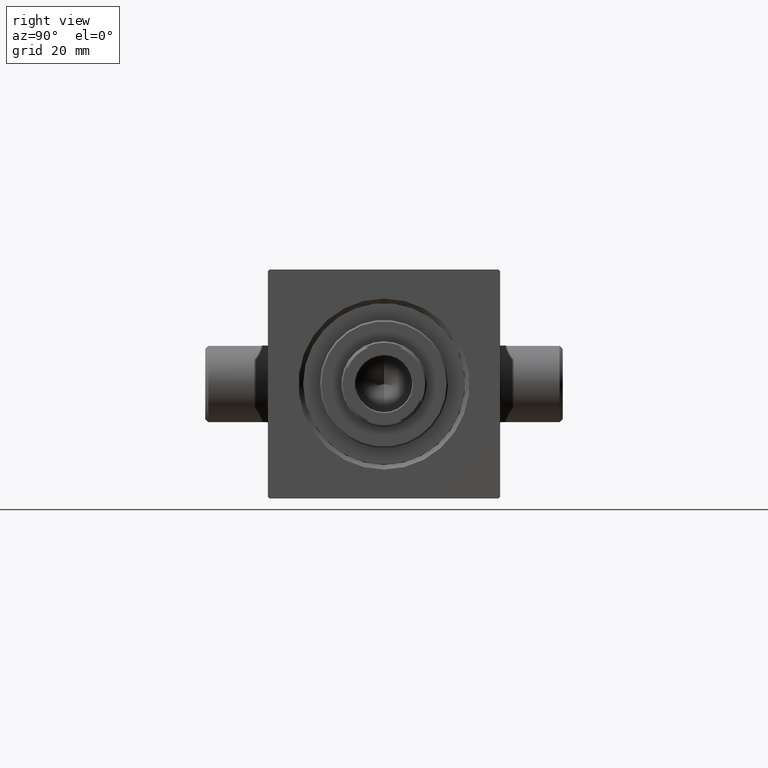
[diagram: clean part render]
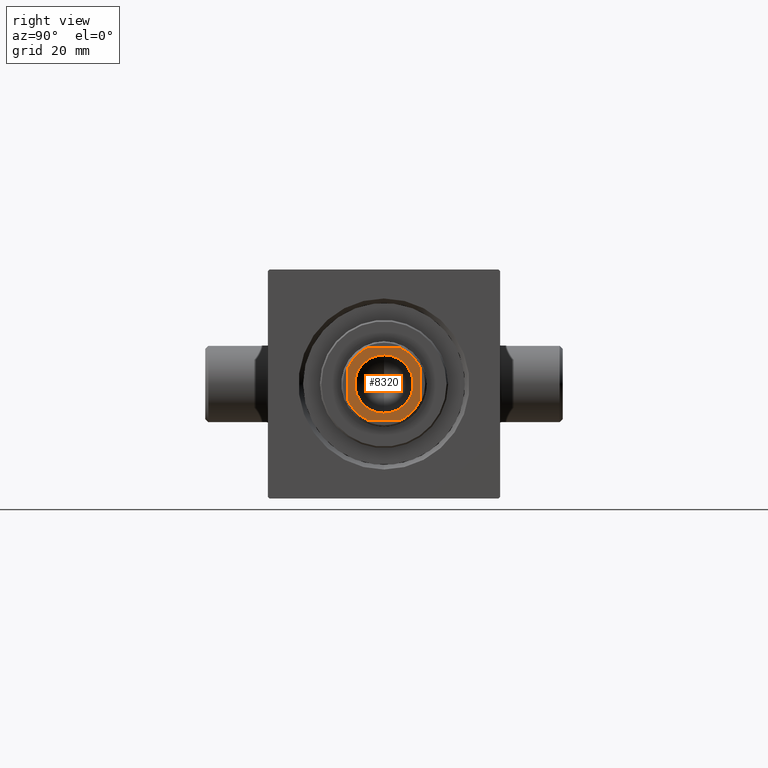
[diagram: same view with one face highlighted and labeled with its STEP entity id]
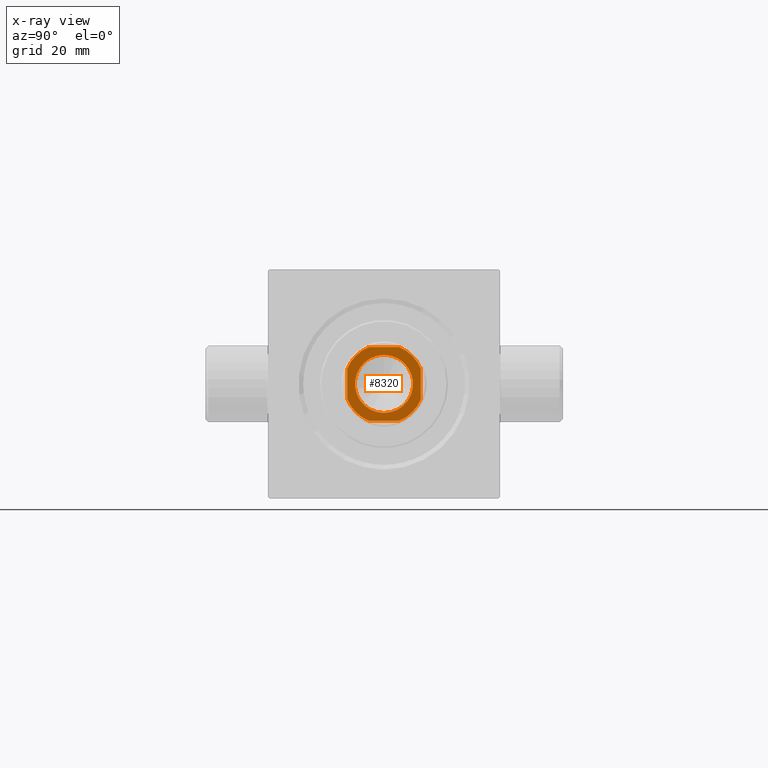
[diagram: x-ray of the same camera — body ghosted, the highlighted face saturated]
A machine part, right view. The second image highlights one B-rep face of the part: STEP entity #8320.
The next image is the same camera in x-ray: the body ghosted, the highlighted face saturated — about 0% of this face is hidden behind the body in this view.
In plain terms, the highlighted planar face has unit normal (1, 0, 0).
Its self-contained STEP definition (entity closure, byte-faithful):
#1484 = LINE ( 'NONE', #5474, #44355 ) ;
#2601 = EDGE_CURVE ( 'NONE', #28726, #5609, #17064, .T. ) ;
#3508 = CIRCLE ( 'NONE', #38664, 12.99999999999999289 ) ;
#3993 = ORIENTED_EDGE ( 'NONE', *, *, #34300, .T. ) ;
#4210 = DIRECTION ( 'NONE',  ( 1.000000000000000000, 0.000000000000000000, 0.000000000000000000 ) ) ;
#4656 = AXIS2_PLACEMENT_3D ( 'NONE', #33235, #36291, #4210 ) ;
#4709 = ORIENTED_EDGE ( 'NONE', *, *, #43701, .T. ) ;
#4777 = DIRECTION ( 'NONE',  ( 7.228014483236695816E-17, -1.000000000000000000, 0.000000000000000000 ) ) ;
#5474 = CARTESIAN_POINT ( 'NONE',  ( -12.00000000000000000, 11.99999999999999645, 142.0000000000000284 ) ) ;
#5609 = VERTEX_POINT ( 'NONE', #24651 ) ;
#6189 = CARTESIAN_POINT ( 'NONE',  ( 0.000000000000000000, 0.000000000000000000, 142.0000000000000284 ) ) ;
#6363 = ORIENTED_EDGE ( 'NONE', *, *, #40218, .T. ) ;
#6896 = AXIS2_PLACEMENT_3D ( 'NONE', #17404, #45945, #21131 ) ;
#7000 = CIRCLE ( 'NONE', #34666, 12.99999999999999112 ) ;
#7150 = CARTESIAN_POINT ( 'NONE',  ( -12.00000000000000000, 11.99999999999999645, 142.0000000000000284 ) ) ;
#8210 = AXIS2_PLACEMENT_3D ( 'NONE', #29879, #36227, #43479 ) ;
#8312 = ORIENTED_EDGE ( 'NONE', *, *, #44182, .T. ) ;
#8320 = ADVANCED_FACE ( 'NONE', ( #29579, #15546 ), #15082, .T. ) ;
#9116 = VERTEX_POINT ( 'NONE', #44851 ) ;
#9302 = CARTESIAN_POINT ( 'NONE',  ( 4.999999999999971578, -12.00000000000000355, 142.0000000000000284 ) ) ;
#9716 = DIRECTION ( 'NONE',  ( 1.000000000000000000, 0.000000000000000000, 0.000000000000000000 ) ) ;
#9766 = CARTESIAN_POINT ( 'NONE',  ( 4.999999999999984013, 11.99999999999999645, 142.0000000000000284 ) ) ;
#10170 = DIRECTION ( 'NONE',  ( 0.000000000000000000, -0.000000000000000000, -1.000000000000000000 ) ) ;
#10256 = VERTEX_POINT ( 'NONE', #31582 ) ;
#10670 = DIRECTION ( 'NONE',  ( -1.000000000000000000, -0.000000000000000000, -0.000000000000000000 ) ) ;
#10893 = ORIENTED_EDGE ( 'NONE', *, *, #2601, .T. ) ;
#11583 = DIRECTION ( 'NONE',  ( 1.000000000000000000, 0.000000000000000000, 0.000000000000000000 ) ) ;
#12407 = EDGE_CURVE ( 'NONE', #35926, #21211, #31953, .T. ) ;
#12970 = ORIENTED_EDGE ( 'NONE', *, *, #20860, .T. ) ;
#13000 = DIRECTION ( 'NONE',  ( 1.000000000000000000, 0.000000000000000000, 0.000000000000000000 ) ) ;
#14860 = CARTESIAN_POINT ( 'NONE',  ( 9.550000000000002487, 0.000000000000000000, 142.0000000000000284 ) ) ;
#15082 = PLANE ( 'NONE',  #43558 ) ;
#15546 = FACE_OUTER_BOUND ( 'NONE', #24784, .T. ) ;
#16897 = CARTESIAN_POINT ( 'NONE',  ( -4.999999999999944933, 11.99999999999999645, 142.0000000000000284 ) ) ;
#17064 = LINE ( 'NONE', #28055, #39775 ) ;
#17197 = CIRCLE ( 'NONE', #8210, 12.99999999999999289 ) ;
#17404 = CARTESIAN_POINT ( 'NONE',  ( 0.000000000000000000, 0.000000000000000000, 142.0000000000000284 ) ) ;
#20860 = EDGE_CURVE ( 'NONE', #10256, #34480, #34277, .T. ) ;
#21131 = DIRECTION ( 'NONE',  ( 1.000000000000000000, 0.000000000000000000, 0.000000000000000000 ) ) ;
#21211 = VERTEX_POINT ( 'NONE', #16897 ) ;
#21725 = EDGE_CURVE ( 'NONE', #39051, #41570, #31144, .T. ) ;
#22267 = VECTOR ( 'NONE', #13000, 1000.000000000000000 ) ;
#23093 = EDGE_CURVE ( 'NONE', #9116, #10256, #3508, .T. ) ;
#24514 = DIRECTION ( 'NONE',  ( -0.000000000000000000, 0.000000000000000000, 1.000000000000000000 ) ) ;
#24651 = CARTESIAN_POINT ( 'NONE',  ( 11.99999999999999822, 4.999999999999980460, 142.0000000000000284 ) ) ;
#24784 = EDGE_LOOP ( 'NONE', ( #10893, #4709, #40972, #43851, #8312, #43487, #12970, #3993 ) ) ;
#25158 = AXIS2_PLACEMENT_3D ( 'NONE', #6189, #10170, #9716 ) ;
#25375 = ORIENTED_EDGE ( 'NONE', *, *, #21725, .T. ) ;
#26973 = DIRECTION ( 'NONE',  ( 1.000000000000000000, 0.000000000000000000, 0.000000000000000000 ) ) ;
#27258 = CARTESIAN_POINT ( 'NONE',  ( -11.99999999999999822, -12.00000000000000355, 142.0000000000000284 ) ) ;
#27896 = CARTESIAN_POINT ( 'NONE',  ( 0.000000000000000000, 0.000000000000000000, 142.0000000000000284 ) ) ;
#28055 = CARTESIAN_POINT ( 'NONE',  ( 11.99999999999999645, 11.99999999999999645, 142.0000000000000284 ) ) ;
#28726 = VERTEX_POINT ( 'NONE', #35690 ) ;
#29346 = CARTESIAN_POINT ( 'NONE',  ( 0.000000000000000000, 0.000000000000000000, 142.0000000000000284 ) ) ;
#29579 = FACE_BOUND ( 'NONE', #39322, .T. ) ;
#29879 = CARTESIAN_POINT ( 'NONE',  ( 0.000000000000000000, 0.000000000000000000, 142.0000000000000284 ) ) ;
#30708 = DIRECTION ( 'NONE',  ( -0.000000000000000000, 0.000000000000000000, 1.000000000000000000 ) ) ;
#31144 = CIRCLE ( 'NONE', #25158, 9.550000000000002487 ) ;
#31582 = CARTESIAN_POINT ( 'NONE',  ( -4.999999999999971578, -12.00000000000000355, 142.0000000000000284 ) ) ;
#31953 = LINE ( 'NONE', #7150, #45200 ) ;
#31992 = CARTESIAN_POINT ( 'NONE',  ( 0.000000000000000000, 0.000000000000000000, 142.0000000000000284 ) ) ;
#32591 = CARTESIAN_POINT ( 'NONE',  ( -12.00000000000000000, 4.999999999999936051, 142.0000000000000284 ) ) ;
#33235 = CARTESIAN_POINT ( 'NONE',  ( 0.000000000000000000, 0.000000000000000000, 142.0000000000000284 ) ) ;
#34277 = LINE ( 'NONE', #27258, #22267 ) ;
#34300 = EDGE_CURVE ( 'NONE', #34480, #28726, #17197, .T. ) ;
#34480 = VERTEX_POINT ( 'NONE', #9302 ) ;
#34666 = AXIS2_PLACEMENT_3D ( 'NONE', #31992, #24514, #34828 ) ;
#34828 = DIRECTION ( 'NONE',  ( 1.000000000000000000, 0.000000000000000000, 0.000000000000000000 ) ) ;
#35690 = CARTESIAN_POINT ( 'NONE',  ( 12.00000000000000178, -4.999999999999976907, 142.0000000000000284 ) ) ;
#35926 = VERTEX_POINT ( 'NONE', #9766 ) ;
#36227 = DIRECTION ( 'NONE',  ( -0.000000000000000000, 0.000000000000000000, 1.000000000000000000 ) ) ;
#36291 = DIRECTION ( 'NONE',  ( -0.000000000000000000, 0.000000000000000000, 1.000000000000000000 ) ) ;
#38271 = CIRCLE ( 'NONE', #4656, 12.99999999999997513 ) ;
#38664 = AXIS2_PLACEMENT_3D ( 'NONE', #27896, #30708, #26973 ) ;
#39051 = VERTEX_POINT ( 'NONE', #14860 ) ;
#39322 = EDGE_LOOP ( 'NONE', ( #25375, #6363 ) ) ;
#39775 = VECTOR ( 'NONE', #46068, 1000.000000000000000 ) ;
#40104 = VERTEX_POINT ( 'NONE', #32591 ) ;
#40218 = EDGE_CURVE ( 'NONE', #41570, #39051, #44255, .T. ) ;
#40567 = EDGE_CURVE ( 'NONE', #21211, #40104, #38271, .T. ) ;
#40972 = ORIENTED_EDGE ( 'NONE', *, *, #12407, .T. ) ;
#41570 = VERTEX_POINT ( 'NONE', #44484 ) ;
#43479 = DIRECTION ( 'NONE',  ( 1.000000000000000000, 0.000000000000000000, 0.000000000000000000 ) ) ;
#43487 = ORIENTED_EDGE ( 'NONE', *, *, #23093, .T. ) ;
#43558 = AXIS2_PLACEMENT_3D ( 'NONE', #29346, #43644, #11583 ) ;
#43644 = DIRECTION ( 'NONE',  ( -0.000000000000000000, 0.000000000000000000, 1.000000000000000000 ) ) ;
#43701 = EDGE_CURVE ( 'NONE', #5609, #35926, #7000, .T. ) ;
#43851 = ORIENTED_EDGE ( 'NONE', *, *, #40567, .T. ) ;
#44182 = EDGE_CURVE ( 'NONE', #40104, #9116, #1484, .T. ) ;
#44255 = CIRCLE ( 'NONE', #6896, 9.550000000000002487 ) ;
#44355 = VECTOR ( 'NONE', #4777, 1000.000000000000000 ) ;
#44484 = CARTESIAN_POINT ( 'NONE',  ( -9.550000000000002487, 1.169537693185722558E-15, 142.0000000000000284 ) ) ;
#44851 = CARTESIAN_POINT ( 'NONE',  ( -12.00000000000000000, -4.999999999999980460, 142.0000000000000284 ) ) ;
#45200 = VECTOR ( 'NONE', #10670, 1000.000000000000000 ) ;
#45945 = DIRECTION ( 'NONE',  ( 0.000000000000000000, -0.000000000000000000, -1.000000000000000000 ) ) ;
#46068 = DIRECTION ( 'NONE',  ( -2.891205793294678326E-16, 1.000000000000000000, -0.000000000000000000 ) ) ;